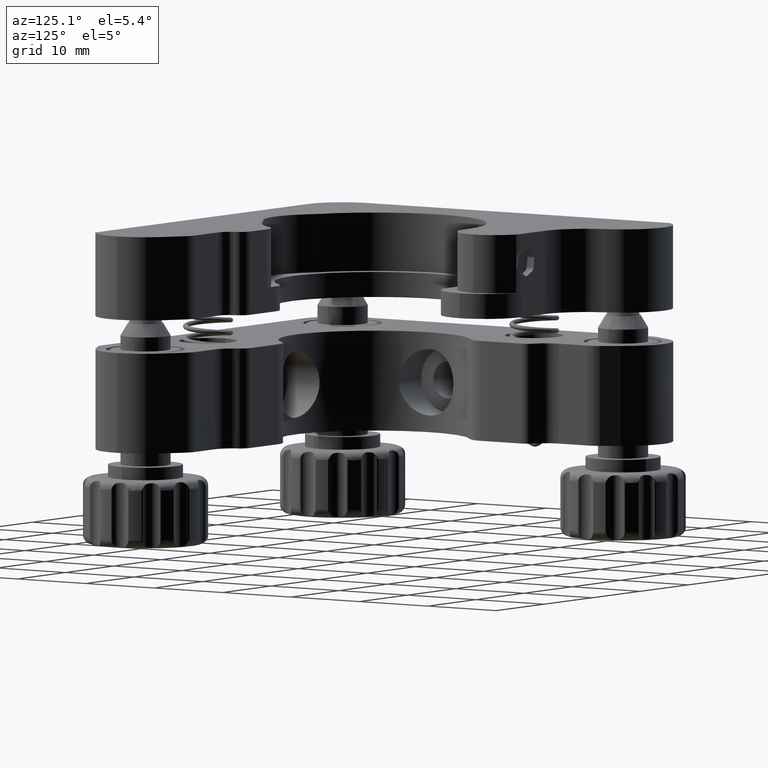
[diagram: clean part render]
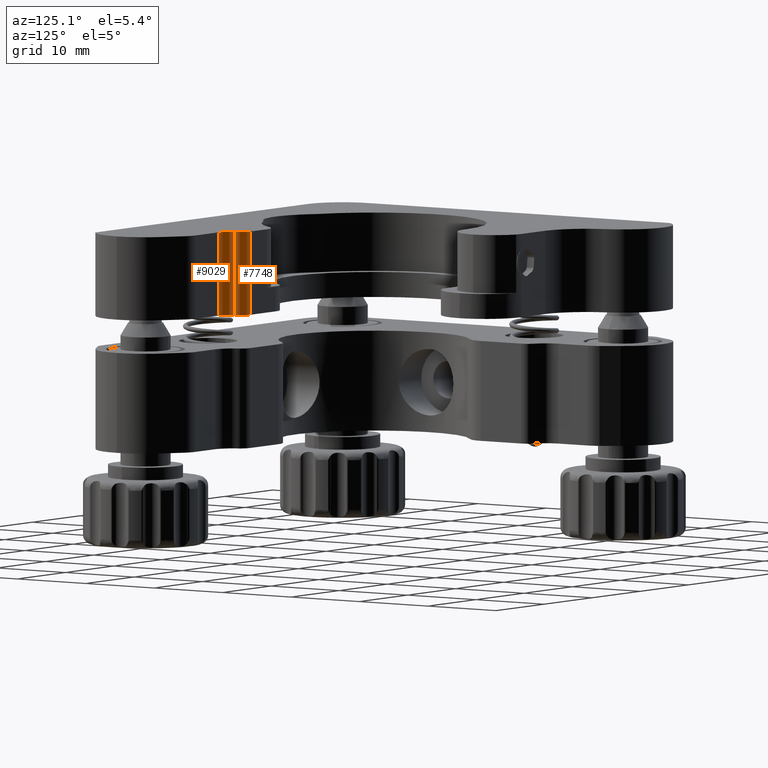
[diagram: same view with one multi-face feature highlighted, each face labeled with its STEP entity id]
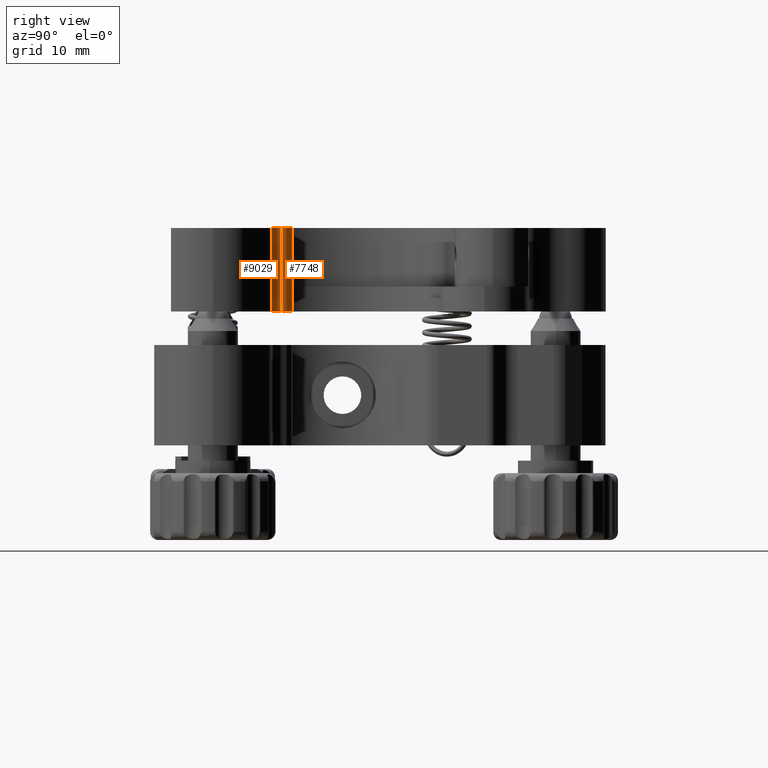
[diagram: same view with one multi-face feature highlighted, each face labeled with its STEP entity id]
A machine part, auxiliary view. The highlighted faces form ONE feature: a constant-radius fillet chain: 2 tangent blend faces with common blend radius 1.5 mm. The faces share edges in the B-rep.
A second angle (right view) of the same feature is appended — it is thin or edge-on in the first view.
Their STEP definitions:
[1] entity #7748 (Cylinder):
#270 = CARTESIAN_POINT ( 'NONE',  ( 17.24994336075721100, -5.999715549456587900, 4.000000000000001800 ) ) ;
#342 = DIRECTION ( 'NONE',  ( 0.0000000000000000000, 0.0000000000000000000, 1.000000000000000000 ) ) ;
#763 = DIRECTION ( 'NONE',  ( 1.000000000000000000, 0.0000000000000000000, 0.0000000000000000000 ) ) ;
#849 = ORIENTED_EDGE ( 'NONE', *, *, #21052, .T. ) ;
#903 = LINE ( 'NONE', #270, #10076 ) ;
#1663 = CYLINDRICAL_SURFACE ( 'NONE', #13132, 1.500000000000001300 ) ;
#1864 = EDGE_LOOP ( 'NONE', ( #13208, #17797, #2176, #849 ) ) ;
#2176 = ORIENTED_EDGE ( 'NONE', *, *, #12254, .T. ) ;
#3356 = EDGE_CURVE ( 'NONE', #8547, #21162, #9710, .T. ) ;
#3957 = CARTESIAN_POINT ( 'NONE',  ( 17.24994336075721100, -7.499715549456587900, 4.000000000000001800 ) ) ;
#6236 = LINE ( 'NONE', #19355, #12873 ) ;
#6277 = FACE_OUTER_BOUND ( 'NONE', #1864, .T. ) ;
#7748 = ADVANCED_FACE ( 'NONE', ( #6277 ), #1663, .T. ) ;
#7928 = CIRCLE ( 'NONE', #14369, 1.500000000000001300 ) ;
#8222 = VERTEX_POINT ( 'NONE', #19364 ) ;
#8547 = VERTEX_POINT ( 'NONE', #8657 ) ;
#8657 = CARTESIAN_POINT ( 'NONE',  ( 18.72896330653211200, -7.249715549456587000, 14.00000000000000200 ) ) ;
#9028 = EDGE_CURVE ( 'NONE', #9036, #8547, #6236, .T. ) ;
#9036 = VERTEX_POINT ( 'NONE', #14666 ) ;
#9527 = DIRECTION ( 'NONE',  ( 0.0000000000000000000, 0.0000000000000000000, 1.000000000000000000 ) ) ;
#9698 = DIRECTION ( 'NONE',  ( 0.0000000000000000000, 0.0000000000000000000, 1.000000000000000000 ) ) ;
#9710 = CIRCLE ( 'NONE', #18970, 1.500000000000001300 ) ;
#9829 = DIRECTION ( 'NONE',  ( 0.0000000000000000000, 0.0000000000000000000, 1.000000000000000000 ) ) ;
#10076 = VECTOR ( 'NONE', #342, 1000.000000000000000 ) ;
#10314 = CARTESIAN_POINT ( 'NONE',  ( 17.24994336075721100, -5.999715549456587900, 14.00000000000000200 ) ) ;
#11206 = CARTESIAN_POINT ( 'NONE',  ( 17.24994336075721100, -7.499715549456587900, 4.000000000000001800 ) ) ;
#12254 = EDGE_CURVE ( 'NONE', #9036, #8222, #7928, .T. ) ;
#12873 = VECTOR ( 'NONE', #9527, 1000.000000000000000 ) ;
#13132 = AXIS2_PLACEMENT_3D ( 'NONE', #11206, #9698, #21192 ) ;
#13208 = ORIENTED_EDGE ( 'NONE', *, *, #3356, .F. ) ;
#14369 = AXIS2_PLACEMENT_3D ( 'NONE', #3957, #20362, #763 ) ;
#14666 = CARTESIAN_POINT ( 'NONE',  ( 18.72896330653211200, -7.249715549456587000, 4.000000000000001800 ) ) ;
#17797 = ORIENTED_EDGE ( 'NONE', *, *, #9028, .F. ) ;
#18970 = AXIS2_PLACEMENT_3D ( 'NONE', #19660, #9829, #21248 ) ;
#19355 = CARTESIAN_POINT ( 'NONE',  ( 18.72896330653211200, -7.249715549456587000, 4.000000000000001800 ) ) ;
#19364 = CARTESIAN_POINT ( 'NONE',  ( 17.24994336075721100, -5.999715549456587900, 4.000000000000001800 ) ) ;
#19660 = CARTESIAN_POINT ( 'NONE',  ( 17.24994336075721100, -7.499715549456587900, 14.00000000000000200 ) ) ;
#20362 = DIRECTION ( 'NONE',  ( 0.0000000000000000000, 0.0000000000000000000, 1.000000000000000000 ) ) ;
#21052 = EDGE_CURVE ( 'NONE', #8222, #21162, #903, .T. ) ;
#21162 = VERTEX_POINT ( 'NONE', #10314 ) ;
#21192 = DIRECTION ( 'NONE',  ( 1.000000000000000000, 0.0000000000000000000, 0.0000000000000000000 ) ) ;
#21248 = DIRECTION ( 'NONE',  ( 1.000000000000000000, 0.0000000000000000000, 0.0000000000000000000 ) ) ;
[2] entity #9029 (Cylinder):
#1819 = DIRECTION ( 'NONE',  ( -1.000000000000000000, 0.0000000000000000000, 0.0000000000000000000 ) ) ;
#3244 = CARTESIAN_POINT ( 'NONE',  ( 20.20798325230701700, -6.999715549456588800, 4.000000000000001800 ) ) ;
#4128 = ORIENTED_EDGE ( 'NONE', *, *, #8543, .F. ) ;
#5396 = DIRECTION ( 'NONE',  ( 0.0000000000000000000, 0.0000000000000000000, 1.000000000000000000 ) ) ;
#5657 = DIRECTION ( 'NONE',  ( -1.000000000000000000, 0.0000000000000000000, 0.0000000000000000000 ) ) ;
#5873 = VERTEX_POINT ( 'NONE', #14840 ) ;
#6236 = LINE ( 'NONE', #19355, #12873 ) ;
#7946 = AXIS2_PLACEMENT_3D ( 'NONE', #14960, #8522, #1819 ) ;
#8333 = AXIS2_PLACEMENT_3D ( 'NONE', #3244, #19288, #14592 ) ;
#8522 = DIRECTION ( 'NONE',  ( -0.0000000000000000000, -0.0000000000000000000, -1.000000000000000000 ) ) ;
#8543 = EDGE_CURVE ( 'NONE', #14045, #8547, #19842, .T. ) ;
#8547 = VERTEX_POINT ( 'NONE', #8657 ) ;
#8567 = VECTOR ( 'NONE', #5396, 1000.000000000000000 ) ;
#8657 = CARTESIAN_POINT ( 'NONE',  ( 18.72896330653211200, -7.249715549456587000, 14.00000000000000200 ) ) ;
#9028 = EDGE_CURVE ( 'NONE', #9036, #8547, #6236, .T. ) ;
#9029 = ADVANCED_FACE ( 'NONE', ( #18275 ), #18789, .F. ) ;
#9036 = VERTEX_POINT ( 'NONE', #14666 ) ;
#9527 = DIRECTION ( 'NONE',  ( 0.0000000000000000000, 0.0000000000000000000, 1.000000000000000000 ) ) ;
#10379 = AXIS2_PLACEMENT_3D ( 'NONE', #14164, #10731, #5657 ) ;
#10547 = EDGE_CURVE ( 'NONE', #5873, #9036, #15400, .T. ) ;
#10731 = DIRECTION ( 'NONE',  ( -0.0000000000000000000, -0.0000000000000000000, -1.000000000000000000 ) ) ;
#11410 = ORIENTED_EDGE ( 'NONE', *, *, #10547, .T. ) ;
#12266 = CARTESIAN_POINT ( 'NONE',  ( 20.20798325230701700, -8.499715549456587000, 14.00000000000000200 ) ) ;
#12545 = ORIENTED_EDGE ( 'NONE', *, *, #19896, .F. ) ;
#12873 = VECTOR ( 'NONE', #9527, 1000.000000000000000 ) ;
#13346 = ORIENTED_EDGE ( 'NONE', *, *, #9028, .T. ) ;
#14045 = VERTEX_POINT ( 'NONE', #12266 ) ;
#14164 = CARTESIAN_POINT ( 'NONE',  ( 20.20798325230701700, -6.999715549456588800, 4.000000000000001800 ) ) ;
#14592 = DIRECTION ( 'NONE',  ( 1.000000000000000000, 0.0000000000000000000, 0.0000000000000000000 ) ) ;
#14666 = CARTESIAN_POINT ( 'NONE',  ( 18.72896330653211200, -7.249715549456587000, 4.000000000000001800 ) ) ;
#14840 = CARTESIAN_POINT ( 'NONE',  ( 20.20798325230701700, -8.499715549456587000, 4.000000000000001800 ) ) ;
#14960 = CARTESIAN_POINT ( 'NONE',  ( 20.20798325230701700, -6.999715549456588800, 14.00000000000000200 ) ) ;
#15400 = CIRCLE ( 'NONE', #10379, 1.500000000000001300 ) ;
#15492 = LINE ( 'NONE', #18431, #8567 ) ;
#18275 = FACE_OUTER_BOUND ( 'NONE', #20751, .T. ) ;
#18431 = CARTESIAN_POINT ( 'NONE',  ( 20.20798325230701700, -8.499715549456587000, 4.000000000000001800 ) ) ;
#18789 = CYLINDRICAL_SURFACE ( 'NONE', #8333, 1.500000000000001300 ) ;
#19288 = DIRECTION ( 'NONE',  ( 0.0000000000000000000, 0.0000000000000000000, 1.000000000000000000 ) ) ;
#19355 = CARTESIAN_POINT ( 'NONE',  ( 18.72896330653211200, -7.249715549456587000, 4.000000000000001800 ) ) ;
#19842 = CIRCLE ( 'NONE', #7946, 1.500000000000001300 ) ;
#19896 = EDGE_CURVE ( 'NONE', #5873, #14045, #15492, .T. ) ;
#20751 = EDGE_LOOP ( 'NONE', ( #4128, #12545, #11410, #13346 ) ) ;